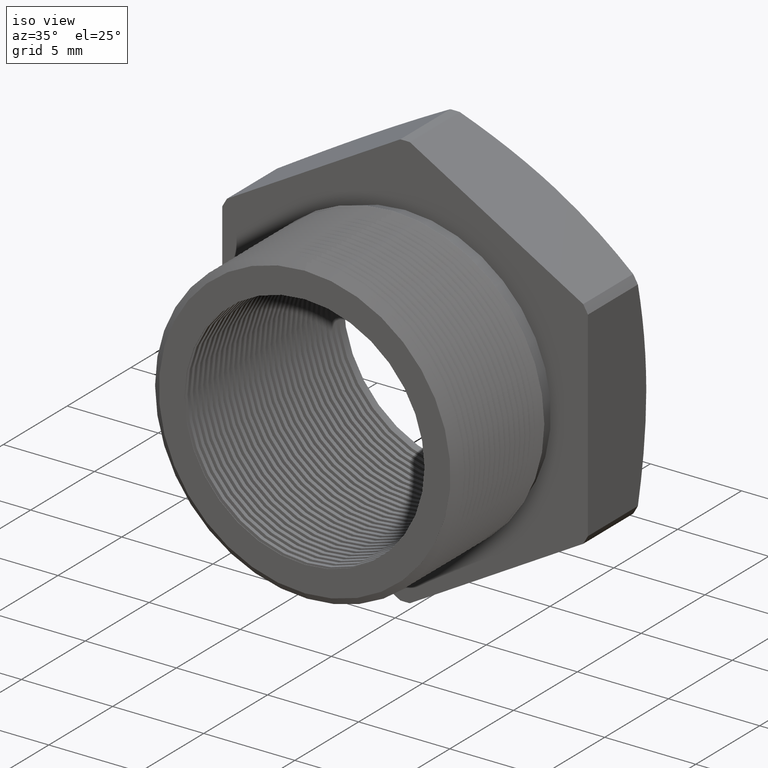
[diagram: clean part render]
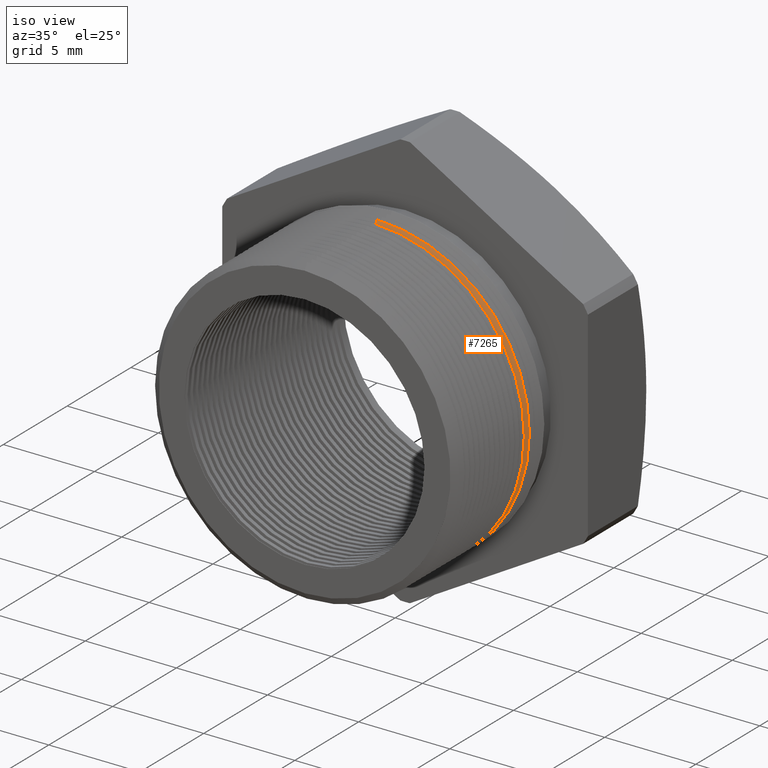
[diagram: same view with one face highlighted and labeled with its STEP entity id]
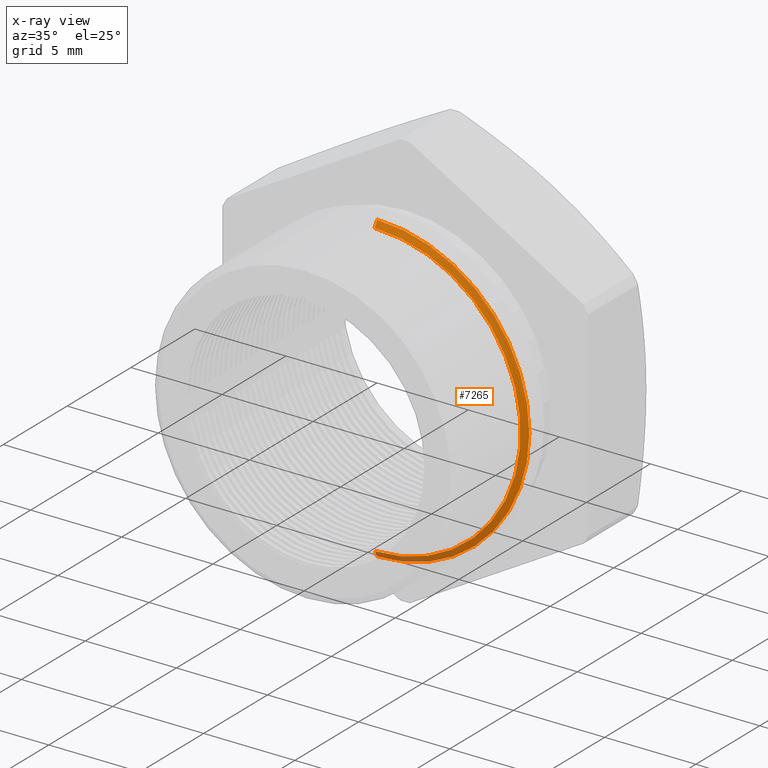
[diagram: x-ray of the same camera — body ghosted, the highlighted face saturated]
A machine part, iso view. The second image highlights one B-rep face of the part: STEP entity #7265.
The next image is the same camera in x-ray: the body ghosted, the highlighted face saturated — about 12% of this face is hidden behind the body in this view.
In plain terms, the highlighted conical surface has half-angle 60 deg.
Its self-contained STEP definition (entity closure, byte-faithful):
#385 = VERTEX_POINT ( 'NONE', #3709 ) ;
#386 = ORIENTED_EDGE ( 'NONE', *, *, #387, .F. ) ;
#387 = EDGE_CURVE ( 'NONE', #2075, #385, #3708, .T. ) ;
#388 = EDGE_CURVE ( 'NONE', #385, #7257, #3703, .T. ) ;
#1128 = CARTESIAN_POINT ( 'NONE',  ( 3.944654523588147600E-017, 0.1336548905829479700, -0.3154370903427743400 ) ) ;
#1129 = DIRECTION ( 'NONE',  ( 0.0000000000000000000, 0.0000000000000000000, -1.000000000000000000 ) ) ;
#1130 = DIRECTION ( 'NONE',  ( 0.0000000000000000000, -1.000000000000000000, 0.0000000000000000000 ) ) ;
#1131 = CARTESIAN_POINT ( 'NONE',  ( 0.0000000000000000000, 0.1336548905829479700, 0.0000000000000000000 ) ) ;
#1132 = AXIS2_PLACEMENT_3D ( 'NONE', #1131, #1130, #1129 ) ;
#1133 = CIRCLE ( 'NONE', #1132, 0.3154370903427743400 ) ;
#1146 = CARTESIAN_POINT ( 'NONE',  ( 0.0000000000000000000, 0.1413548905829480100, -0.3287738815610546400 ) ) ;
#1189 = DIRECTION ( 'NONE',  ( 0.0000000000000000000, 0.0000000000000000000, 1.000000000000000000 ) ) ;
#1190 = DIRECTION ( 'NONE',  ( -0.0000000000000000000, 1.000000000000000000, -0.0000000000000000000 ) ) ;
#1191 = CARTESIAN_POINT ( 'NONE',  ( 0.0000000000000000000, 0.1413548905829480100, 0.0000000000000000000 ) ) ;
#1192 = AXIS2_PLACEMENT_3D ( 'NONE', #1191, #1190, #1189 ) ;
#1193 = CONICAL_SURFACE ( 'NONE', #1192, 0.3287738815610546400, 1.047197551196596700 ) ;
#1194 = FACE_OUTER_BOUND ( 'NONE', #7254, .T. ) ;
#1195 = DIRECTION ( 'NONE',  ( 1.060575238724906300E-016, 0.5000000000000008900, -0.8660254037844380400 ) ) ;
#1196 = VECTOR ( 'NONE', #1195, 39.37007874015748100 ) ;
#1197 = CARTESIAN_POINT ( 'NONE',  ( 4.026318816969965600E-017, 0.1413548905829480100, -0.3287738815610546400 ) ) ;
#1198 = LINE ( 'NONE', #1197, #1196 ) ;
#2075 = VERTEX_POINT ( 'NONE', #5828 ) ;
#3699 = DIRECTION ( 'NONE',  ( 0.0000000000000000000, 0.0000000000000000000, 1.000000000000000000 ) ) ;
#3700 = DIRECTION ( 'NONE',  ( -0.0000000000000000000, 1.000000000000000000, -0.0000000000000000000 ) ) ;
#3701 = CARTESIAN_POINT ( 'NONE',  ( 0.0000000000000000000, 0.1413548905829480100, 0.0000000000000000000 ) ) ;
#3702 = AXIS2_PLACEMENT_3D ( 'NONE', #3701, #3700, #3699 ) ;
#3703 = CIRCLE ( 'NONE', #3702, 0.3287738815610546400 ) ;
#3705 = DIRECTION ( 'NONE',  ( 0.0000000000000000000, 0.5000000000000008900, 0.8660254037844380400 ) ) ;
#3706 = VECTOR ( 'NONE', #3705, 39.37007874015748100 ) ;
#3707 = CARTESIAN_POINT ( 'NONE',  ( 0.0000000000000000000, 0.1413548905829480100, 0.3287738815610546400 ) ) ;
#3708 = LINE ( 'NONE', #3707, #3706 ) ;
#3709 = CARTESIAN_POINT ( 'NONE',  ( 4.026318816969966200E-017, 0.1413548905829480100, 0.3287738815610546400 ) ) ;
#5828 = CARTESIAN_POINT ( 'NONE',  ( 0.0000000000000000000, 0.1336548905829479700, 0.3154370903427743400 ) ) ;
#7230 = EDGE_CURVE ( 'NONE', #7231, #2075, #1133, .T. ) ;
#7231 = VERTEX_POINT ( 'NONE', #1128 ) ;
#7250 = ORIENTED_EDGE ( 'NONE', *, *, #388, .F. ) ;
#7252 = ORIENTED_EDGE ( 'NONE', *, *, #7263, .T. ) ;
#7254 = EDGE_LOOP ( 'NONE', ( #7267, #7252, #7250, #386 ) ) ;
#7257 = VERTEX_POINT ( 'NONE', #1146 ) ;
#7263 = EDGE_CURVE ( 'NONE', #7231, #7257, #1198, .T. ) ;
#7265 = ADVANCED_FACE ( 'NONE', ( #1194 ), #1193, .T. ) ;
#7267 = ORIENTED_EDGE ( 'NONE', *, *, #7230, .F. ) ;